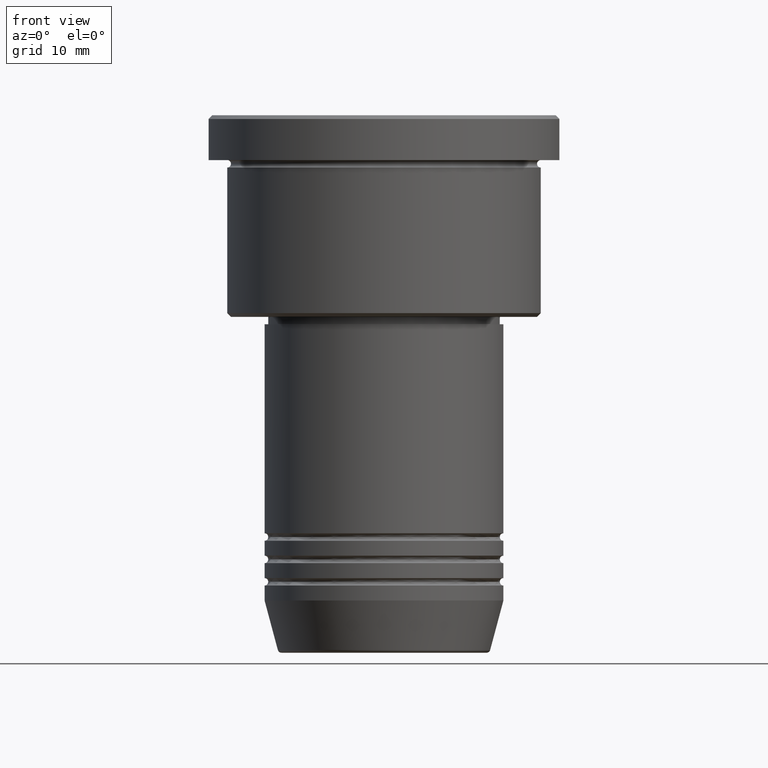
[diagram: clean part render]
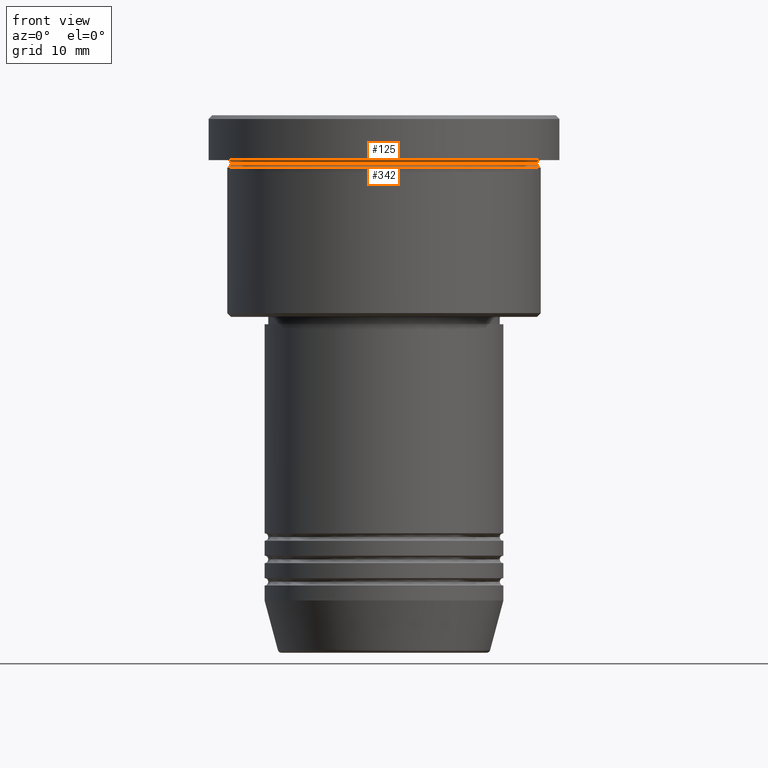
[diagram: same view with one multi-face feature highlighted, each face labeled with its STEP entity id]
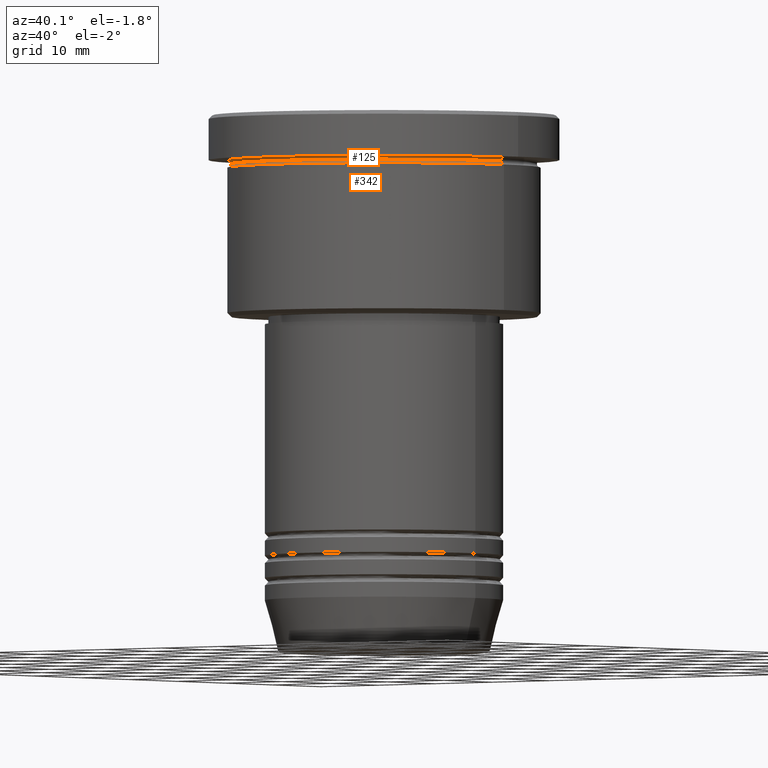
[diagram: same view with one multi-face feature highlighted, each face labeled with its STEP entity id]
A machine part, front view. The highlighted faces form ONE feature: a constant-radius fillet chain: 2 tangent blend faces with common blend radius 0.5 mm. The faces share edges in the B-rep.
A second angle (auxiliary view) of the same feature is appended — it is thin or edge-on in the first view.
Their STEP definitions:
[1] entity #342 (Torus):
#21 = AXIS2_PLACEMENT_3D ( 'NONE', #969, #684, #874 ) ;
#49 = DIRECTION ( 'NONE',  ( 0.000000000000000000, -1.000000000000000000, 0.000000000000000000 ) ) ;
#96 = CIRCLE ( 'NONE', #362, 0.5000000000000004441 ) ;
#135 = DIRECTION ( 'NONE',  ( 0.000000000000000000, 0.000000000000000000, -1.000000000000000000 ) ) ;
#145 = DIRECTION ( 'NONE',  ( 1.000000000000000000, 0.000000000000000000, 0.000000000000000000 ) ) ;
#171 = DIRECTION ( 'NONE',  ( 1.000000000000000000, 0.000000000000000000, 0.000000000000000000 ) ) ;
#180 = DIRECTION ( 'NONE',  ( -0.000000000000000000, -0.000000000000000000, 1.000000000000000000 ) ) ;
#190 = VERTEX_POINT ( 'NONE', #1006 ) ;
#196 = CIRCLE ( 'NONE', #21, 20.50000000000000000 ) ;
#216 = CIRCLE ( 'NONE', #705, 0.5000000000000004441 ) ;
#228 = CARTESIAN_POINT ( 'NONE',  ( 0.000000000000000000, 0.000000000000000000, -6.499999999999995559 ) ) ;
#239 = CIRCLE ( 'NONE', #902, 21.00000000000000000 ) ;
#335 = EDGE_CURVE ( 'NONE', #1173, #526, #216, .T. ) ;
#336 = EDGE_CURVE ( 'NONE', #1173, #849, #196, .T. ) ;
#342 = ADVANCED_FACE ( 'NONE', ( #1056 ), #478, .F. ) ;
#353 = CARTESIAN_POINT ( 'NONE',  ( 0.000000000000000000, 0.000000000000000000, -6.999999999999994671 ) ) ;
#362 = AXIS2_PLACEMENT_3D ( 'NONE', #586, #49, #135 ) ;
#375 = EDGE_CURVE ( 'NONE', #849, #190, #96, .T. ) ;
#408 = CARTESIAN_POINT ( 'NONE',  ( -21.00000000000000000, 2.571758278209441661E-15, -6.499999999999995559 ) ) ;
#478 = TOROIDAL_SURFACE ( 'NONE', #765, 21.00000000000000000, 0.5000000000000000000 ) ;
#526 = VERTEX_POINT ( 'NONE', #894 ) ;
#533 = EDGE_LOOP ( 'NONE', ( #582, #1063, #859, #952 ) ) ;
#582 = ORIENTED_EDGE ( 'NONE', *, *, #336, .F. ) ;
#586 = CARTESIAN_POINT ( 'NONE',  ( 21.00000000000000000, 0.000000000000000000, -6.499999999999995559 ) ) ;
#684 = DIRECTION ( 'NONE',  ( -0.000000000000000000, -0.000000000000000000, 1.000000000000000000 ) ) ;
#705 = AXIS2_PLACEMENT_3D ( 'NONE', #408, #961, #1049 ) ;
#765 = AXIS2_PLACEMENT_3D ( 'NONE', #228, #864, #145 ) ;
#849 = VERTEX_POINT ( 'NONE', #1081 ) ;
#859 = ORIENTED_EDGE ( 'NONE', *, *, #1139, .T. ) ;
#864 = DIRECTION ( 'NONE',  ( -0.000000000000000000, -0.000000000000000000, 1.000000000000000000 ) ) ;
#874 = DIRECTION ( 'NONE',  ( 1.000000000000000000, 0.000000000000000000, 0.000000000000000000 ) ) ;
#894 = CARTESIAN_POINT ( 'NONE',  ( -21.00000000000000000, 2.571758278209441661E-15, -6.999999999999994671 ) ) ;
#902 = AXIS2_PLACEMENT_3D ( 'NONE', #353, #180, #171 ) ;
#908 = CARTESIAN_POINT ( 'NONE',  ( -20.50000000000000000, 2.541142108230757874E-15, -6.499999999999995559 ) ) ;
#952 = ORIENTED_EDGE ( 'NONE', *, *, #375, .F. ) ;
#961 = DIRECTION ( 'NONE',  ( 1.224646799147353207E-16, 1.000000000000000000, 0.000000000000000000 ) ) ;
#969 = CARTESIAN_POINT ( 'NONE',  ( 0.000000000000000000, 0.000000000000000000, -6.499999999999995559 ) ) ;
#1006 = CARTESIAN_POINT ( 'NONE',  ( 21.00000000000000000, 0.000000000000000000, -6.999999999999994671 ) ) ;
#1049 = DIRECTION ( 'NONE',  ( -1.000000000000000000, 1.224646799147349509E-16, 0.000000000000000000 ) ) ;
#1056 = FACE_OUTER_BOUND ( 'NONE', #533, .T. ) ;
#1063 = ORIENTED_EDGE ( 'NONE', *, *, #335, .T. ) ;
#1081 = CARTESIAN_POINT ( 'NONE',  ( 20.50000000000000000, 0.000000000000000000, -6.499999999999995559 ) ) ;
#1139 = EDGE_CURVE ( 'NONE', #526, #190, #239, .T. ) ;
#1173 = VERTEX_POINT ( 'NONE', #908 ) ;
[2] entity #125 (Torus):
#21 = AXIS2_PLACEMENT_3D ( 'NONE', #969, #684, #874 ) ;
#56 = FACE_OUTER_BOUND ( 'NONE', #1058, .T. ) ;
#61 = CARTESIAN_POINT ( 'NONE',  ( 21.00000000000000000, 2.571758278209441661E-15, -6.499999999999995559 ) ) ;
#90 = VERTEX_POINT ( 'NONE', #704 ) ;
#93 = DIRECTION ( 'NONE',  ( -0.000000000000000000, -0.000000000000000000, 1.000000000000000000 ) ) ;
#125 = ADVANCED_FACE ( 'NONE', ( #56 ), #764, .F. ) ;
#186 = DIRECTION ( 'NONE',  ( -0.000000000000000000, -1.000000000000000000, -0.000000000000000000 ) ) ;
#196 = CIRCLE ( 'NONE', #21, 20.50000000000000000 ) ;
#208 = CARTESIAN_POINT ( 'NONE',  ( 21.00000000000000000, 2.571758278209441661E-15, -5.999999999999994671 ) ) ;
#336 = EDGE_CURVE ( 'NONE', #1173, #849, #196, .T. ) ;
#343 = ORIENTED_EDGE ( 'NONE', *, *, #677, .F. ) ;
#351 = CARTESIAN_POINT ( 'NONE',  ( 0.000000000000000000, 0.000000000000000000, -6.499999999999995559 ) ) ;
#363 = CARTESIAN_POINT ( 'NONE',  ( 0.000000000000000000, 0.000000000000000000, -5.999999999999994671 ) ) ;
#422 = DIRECTION ( 'NONE',  ( -1.224646799147353207E-16, 1.000000000000000000, 0.000000000000000000 ) ) ;
#423 = AXIS2_PLACEMENT_3D ( 'NONE', #541, #186, #450 ) ;
#450 = DIRECTION ( 'NONE',  ( 0.000000000000000000, 0.000000000000000000, -1.000000000000000000 ) ) ;
#496 = CIRCLE ( 'NONE', #690, 21.00000000000000000 ) ;
#538 = DIRECTION ( 'NONE',  ( 0.000000000000000000, 0.000000000000000000, -1.000000000000000000 ) ) ;
#541 = CARTESIAN_POINT ( 'NONE',  ( -21.00000000000000000, 0.000000000000000000, -6.499999999999995559 ) ) ;
#560 = CIRCLE ( 'NONE', #423, 0.5000000000000004441 ) ;
#601 = ORIENTED_EDGE ( 'NONE', *, *, #963, .F. ) ;
#676 = VERTEX_POINT ( 'NONE', #208 ) ;
#677 = EDGE_CURVE ( 'NONE', #90, #676, #496, .T. ) ;
#684 = DIRECTION ( 'NONE',  ( -0.000000000000000000, -0.000000000000000000, 1.000000000000000000 ) ) ;
#690 = AXIS2_PLACEMENT_3D ( 'NONE', #363, #93, #936 ) ;
#704 = CARTESIAN_POINT ( 'NONE',  ( -21.00000000000000000, 0.000000000000000000, -5.999999999999994671 ) ) ;
#756 = ORIENTED_EDGE ( 'NONE', *, *, #336, .T. ) ;
#764 = TOROIDAL_SURFACE ( 'NONE', #879, 21.00000000000000000, 0.5000000000000000000 ) ;
#787 = CIRCLE ( 'NONE', #1132, 0.5000000000000004441 ) ;
#849 = VERTEX_POINT ( 'NONE', #1081 ) ;
#874 = DIRECTION ( 'NONE',  ( 1.000000000000000000, 0.000000000000000000, 0.000000000000000000 ) ) ;
#879 = AXIS2_PLACEMENT_3D ( 'NONE', #351, #538, #1071 ) ;
#908 = CARTESIAN_POINT ( 'NONE',  ( -20.50000000000000000, 2.541142108230757874E-15, -6.499999999999995559 ) ) ;
#936 = DIRECTION ( 'NONE',  ( -1.000000000000000000, 0.000000000000000000, 0.000000000000000000 ) ) ;
#963 = EDGE_CURVE ( 'NONE', #1173, #90, #560, .T. ) ;
#969 = CARTESIAN_POINT ( 'NONE',  ( 0.000000000000000000, 0.000000000000000000, -6.499999999999995559 ) ) ;
#1058 = EDGE_LOOP ( 'NONE', ( #756, #1109, #343, #601 ) ) ;
#1071 = DIRECTION ( 'NONE',  ( -1.000000000000000000, 0.000000000000000000, 0.000000000000000000 ) ) ;
#1081 = CARTESIAN_POINT ( 'NONE',  ( 20.50000000000000000, 0.000000000000000000, -6.499999999999995559 ) ) ;
#1109 = ORIENTED_EDGE ( 'NONE', *, *, #1135, .T. ) ;
#1132 = AXIS2_PLACEMENT_3D ( 'NONE', #61, #422, #1156 ) ;
#1135 = EDGE_CURVE ( 'NONE', #849, #676, #787, .T. ) ;
#1156 = DIRECTION ( 'NONE',  ( -1.000000000000000000, -1.224646799147349509E-16, 0.000000000000000000 ) ) ;
#1173 = VERTEX_POINT ( 'NONE', #908 ) ;